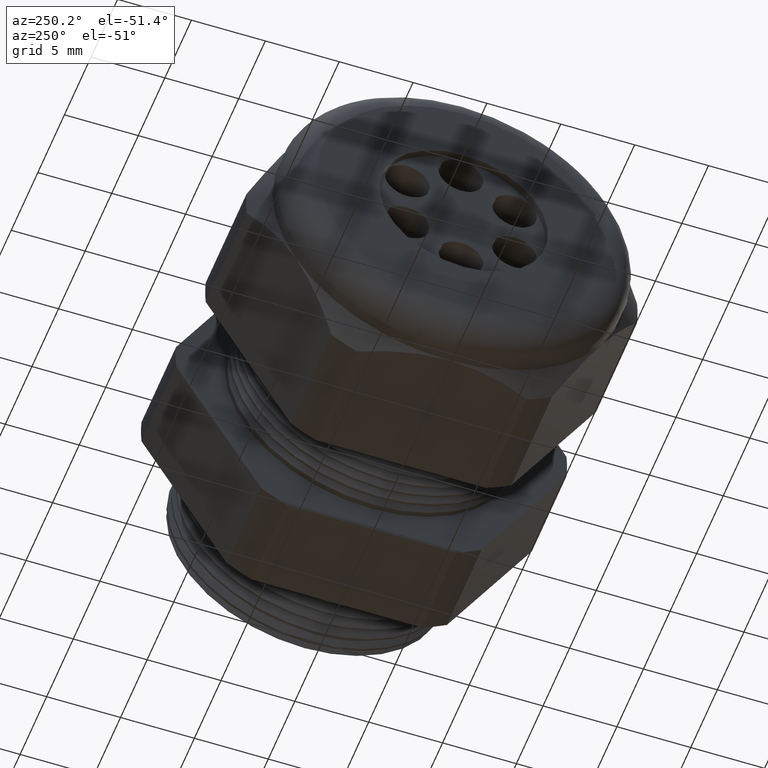
[diagram: clean part render]
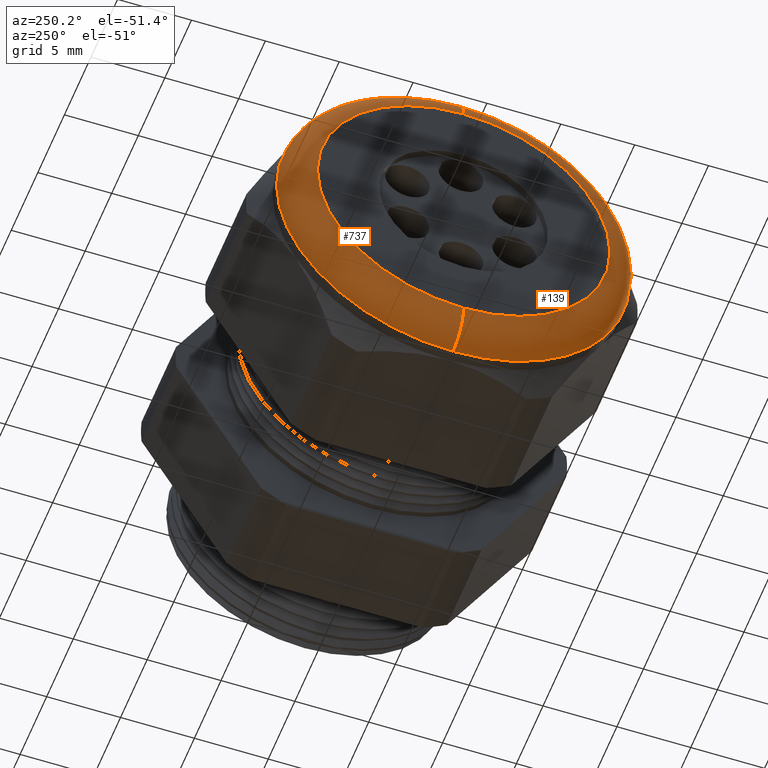
[diagram: same view with one multi-face feature highlighted, each face labeled with its STEP entity id]
A machine part, auxiliary view. The highlighted faces form ONE feature: a constant-radius fillet chain: 2 tangent blend faces with common blend radius 2.032 mm. The faces share edges in the B-rep.
Their STEP definitions:
[1] entity #737 (Torus):
#737 = ADVANCED_FACE ( 'NONE', ( #2605 ), #2603, .T. ) ;
#738 = ORIENTED_EDGE ( 'NONE', *, *, #739, .F. ) ;
#739 = EDGE_CURVE ( 'NONE', #740, #741, #2599, .T. ) ;
#740 = VERTEX_POINT ( 'NONE', #2594 ) ;
#741 = VERTEX_POINT ( 'NONE', #2593 ) ;
#742 = ORIENTED_EDGE ( 'NONE', *, *, #743, .T. ) ;
#743 = EDGE_CURVE ( 'NONE', #740, #744, #2592, .T. ) ;
#744 = VERTEX_POINT ( 'NONE', #2587 ) ;
#745 = ORIENTED_EDGE ( 'NONE', *, *, #746, .F. ) ;
#746 = EDGE_CURVE ( 'NONE', #747, #744, #2586, .T. ) ;
#747 = VERTEX_POINT ( 'NONE', #2641 ) ;
#748 = ORIENTED_EDGE ( 'NONE', *, *, #749, .F. ) ;
#749 = EDGE_CURVE ( 'NONE', #741, #747, #2639, .T. ) ;
#763 = EDGE_LOOP ( 'NONE', ( #738, #742, #745, #748 ) ) ;
#2583 = DIRECTION ( 'NONE',  ( -1.000000000000000000, 0.0000000000000000000, 0.0000000000000000000 ) ) ;
#2584 = CARTESIAN_POINT ( 'NONE',  ( -1.249999999999999800, 0.0000000000000000000, 0.0000000000000000000 ) ) ;
#2585 = AXIS2_PLACEMENT_3D ( 'NONE', #2584, #2583, #2642 ) ;
#2586 = CIRCLE ( 'NONE', #2585, 0.3899999999999999600 ) ;
#2587 = CARTESIAN_POINT ( 'NONE',  ( -1.249999999999999800, 5.265981236333617600E-017, -0.3899999999999999600 ) ) ;
#2588 = DIRECTION ( 'NONE',  ( 0.0000000000000000000, -1.224646799147353900E-016, 1.000000000000000000 ) ) ;
#2589 = DIRECTION ( 'NONE',  ( 0.0000000000000000000, 1.000000000000000000, 1.224646799147353200E-016 ) ) ;
#2590 = CARTESIAN_POINT ( 'NONE',  ( -1.169999999999999700, 4.776122516674676800E-017, -0.3899999999999999600 ) ) ;
#2591 = AXIS2_PLACEMENT_3D ( 'NONE', #2590, #2589, #2588 ) ;
#2592 = CIRCLE ( 'NONE', #2591, 0.07999999999999996000 ) ;
#2593 = CARTESIAN_POINT ( 'NONE',  ( -1.169999999999999700, 5.755839955992559700E-017, 0.4699999999999999700 ) ) ;
#2594 = CARTESIAN_POINT ( 'NONE',  ( -1.169999999999999700, 0.0000000000000000000, -0.4699999999999999700 ) ) ;
#2595 = DIRECTION ( 'NONE',  ( 0.0000000000000000000, 0.0000000000000000000, 1.000000000000000000 ) ) ;
#2596 = DIRECTION ( 'NONE',  ( 1.000000000000000000, 0.0000000000000000000, 0.0000000000000000000 ) ) ;
#2597 = CARTESIAN_POINT ( 'NONE',  ( -1.169999999999999700, 0.0000000000000000000, 0.0000000000000000000 ) ) ;
#2598 = AXIS2_PLACEMENT_3D ( 'NONE', #2597, #2596, #2595 ) ;
#2599 = CIRCLE ( 'NONE', #2598, 0.4699999999999999700 ) ;
#2600 = DIRECTION ( 'NONE',  ( 0.0000000000000000000, 0.0000000000000000000, 1.000000000000000000 ) ) ;
#2601 = DIRECTION ( 'NONE',  ( -1.000000000000000000, 0.0000000000000000000, 0.0000000000000000000 ) ) ;
#2602 = AXIS2_PLACEMENT_3D ( 'NONE', #2604, #2601, #2600 ) ;
#2603 = TOROIDAL_SURFACE ( 'NONE', #2602, 0.3899999999999999600, 0.08000000000000000200 ) ;
#2604 = CARTESIAN_POINT ( 'NONE',  ( -1.169999999999999700, 0.0000000000000000000, 0.0000000000000000000 ) ) ;
#2605 = FACE_OUTER_BOUND ( 'NONE', #763, .T. ) ;
#2635 = DIRECTION ( 'NONE',  ( 0.0000000000000000000, 0.0000000000000000000, -1.000000000000000000 ) ) ;
#2636 = DIRECTION ( 'NONE',  ( 0.0000000000000000000, -1.000000000000000000, 0.0000000000000000000 ) ) ;
#2637 = CARTESIAN_POINT ( 'NONE',  ( -1.169999999999999700, 0.0000000000000000000, 0.3899999999999999600 ) ) ;
#2638 = AXIS2_PLACEMENT_3D ( 'NONE', #2637, #2636, #2635 ) ;
#2639 = CIRCLE ( 'NONE', #2638, 0.07999999999999996000 ) ;
#2641 = CARTESIAN_POINT ( 'NONE',  ( -1.249999999999999800, 0.0000000000000000000, 0.3899999999999999600 ) ) ;
#2642 = DIRECTION ( 'NONE',  ( 0.0000000000000000000, 0.0000000000000000000, 1.000000000000000000 ) ) ;
[2] entity #139 (Torus):
#139 = ADVANCED_FACE ( 'NONE', ( #1506 ), #1505, .T. ) ;
#140 = EDGE_LOOP ( 'NONE', ( #141, #142, #143, #144 ) ) ;
#141 = ORIENTED_EDGE ( 'NONE', *, *, #743, .F. ) ;
#142 = ORIENTED_EDGE ( 'NONE', *, *, #337, .F. ) ;
#143 = ORIENTED_EDGE ( 'NONE', *, *, #749, .T. ) ;
#144 = ORIENTED_EDGE ( 'NONE', *, *, #4033, .F. ) ;
#337 = EDGE_CURVE ( 'NONE', #741, #740, #1759, .T. ) ;
#740 = VERTEX_POINT ( 'NONE', #2594 ) ;
#741 = VERTEX_POINT ( 'NONE', #2593 ) ;
#743 = EDGE_CURVE ( 'NONE', #740, #744, #2592, .T. ) ;
#744 = VERTEX_POINT ( 'NONE', #2587 ) ;
#747 = VERTEX_POINT ( 'NONE', #2641 ) ;
#749 = EDGE_CURVE ( 'NONE', #741, #747, #2639, .T. ) ;
#1502 = DIRECTION ( 'NONE',  ( 0.0000000000000000000, 0.0000000000000000000, 1.000000000000000000 ) ) ;
#1503 = DIRECTION ( 'NONE',  ( -1.000000000000000000, 0.0000000000000000000, 0.0000000000000000000 ) ) ;
#1504 = AXIS2_PLACEMENT_3D ( 'NONE', #1512, #1503, #1502 ) ;
#1505 = TOROIDAL_SURFACE ( 'NONE', #1504, 0.3899999999999999600, 0.08000000000000000200 ) ;
#1506 = FACE_OUTER_BOUND ( 'NONE', #140, .T. ) ;
#1512 = CARTESIAN_POINT ( 'NONE',  ( -1.169999999999999700, 0.0000000000000000000, 0.0000000000000000000 ) ) ;
#1755 = DIRECTION ( 'NONE',  ( 0.0000000000000000000, 0.0000000000000000000, 1.000000000000000000 ) ) ;
#1756 = DIRECTION ( 'NONE',  ( 1.000000000000000000, 0.0000000000000000000, 0.0000000000000000000 ) ) ;
#1757 = CARTESIAN_POINT ( 'NONE',  ( -1.169999999999999700, 0.0000000000000000000, 0.0000000000000000000 ) ) ;
#1758 = AXIS2_PLACEMENT_3D ( 'NONE', #1757, #1756, #1755 ) ;
#1759 = CIRCLE ( 'NONE', #1758, 0.4699999999999999700 ) ;
#2587 = CARTESIAN_POINT ( 'NONE',  ( -1.249999999999999800, 5.265981236333617600E-017, -0.3899999999999999600 ) ) ;
#2588 = DIRECTION ( 'NONE',  ( 0.0000000000000000000, -1.224646799147353900E-016, 1.000000000000000000 ) ) ;
#2589 = DIRECTION ( 'NONE',  ( 0.0000000000000000000, 1.000000000000000000, 1.224646799147353200E-016 ) ) ;
#2590 = CARTESIAN_POINT ( 'NONE',  ( -1.169999999999999700, 4.776122516674676800E-017, -0.3899999999999999600 ) ) ;
#2591 = AXIS2_PLACEMENT_3D ( 'NONE', #2590, #2589, #2588 ) ;
#2592 = CIRCLE ( 'NONE', #2591, 0.07999999999999996000 ) ;
#2593 = CARTESIAN_POINT ( 'NONE',  ( -1.169999999999999700, 5.755839955992559700E-017, 0.4699999999999999700 ) ) ;
#2594 = CARTESIAN_POINT ( 'NONE',  ( -1.169999999999999700, 0.0000000000000000000, -0.4699999999999999700 ) ) ;
#2635 = DIRECTION ( 'NONE',  ( 0.0000000000000000000, 0.0000000000000000000, -1.000000000000000000 ) ) ;
#2636 = DIRECTION ( 'NONE',  ( 0.0000000000000000000, -1.000000000000000000, 0.0000000000000000000 ) ) ;
#2637 = CARTESIAN_POINT ( 'NONE',  ( -1.169999999999999700, 0.0000000000000000000, 0.3899999999999999600 ) ) ;
#2638 = AXIS2_PLACEMENT_3D ( 'NONE', #2637, #2636, #2635 ) ;
#2639 = CIRCLE ( 'NONE', #2638, 0.07999999999999996000 ) ;
#2641 = CARTESIAN_POINT ( 'NONE',  ( -1.249999999999999800, 0.0000000000000000000, 0.3899999999999999600 ) ) ;
#3775 = DIRECTION ( 'NONE',  ( 0.0000000000000000000, 0.0000000000000000000, 1.000000000000000000 ) ) ;
#3776 = DIRECTION ( 'NONE',  ( -1.000000000000000000, 0.0000000000000000000, 0.0000000000000000000 ) ) ;
#3777 = CARTESIAN_POINT ( 'NONE',  ( -1.249999999999999800, 0.0000000000000000000, 0.0000000000000000000 ) ) ;
#3778 = AXIS2_PLACEMENT_3D ( 'NONE', #3777, #3776, #3775 ) ;
#3779 = CIRCLE ( 'NONE', #3778, 0.3899999999999999600 ) ;
#4033 = EDGE_CURVE ( 'NONE', #744, #747, #3779, .T. ) ;